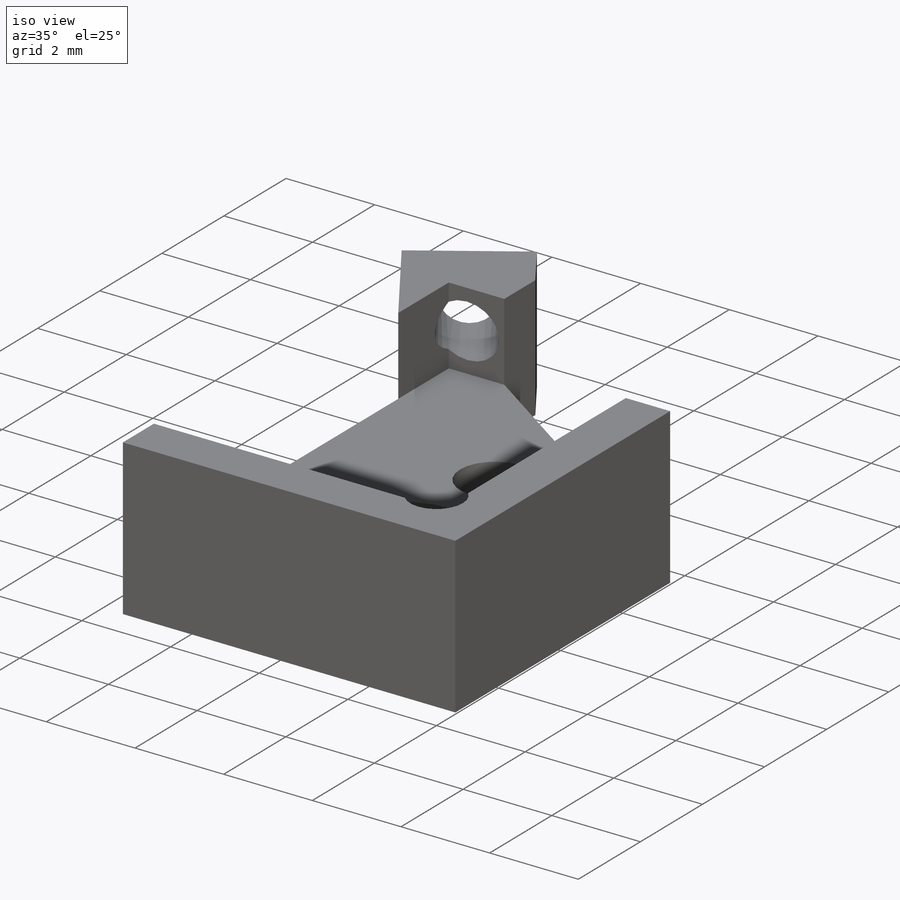
[diagram: iso view]
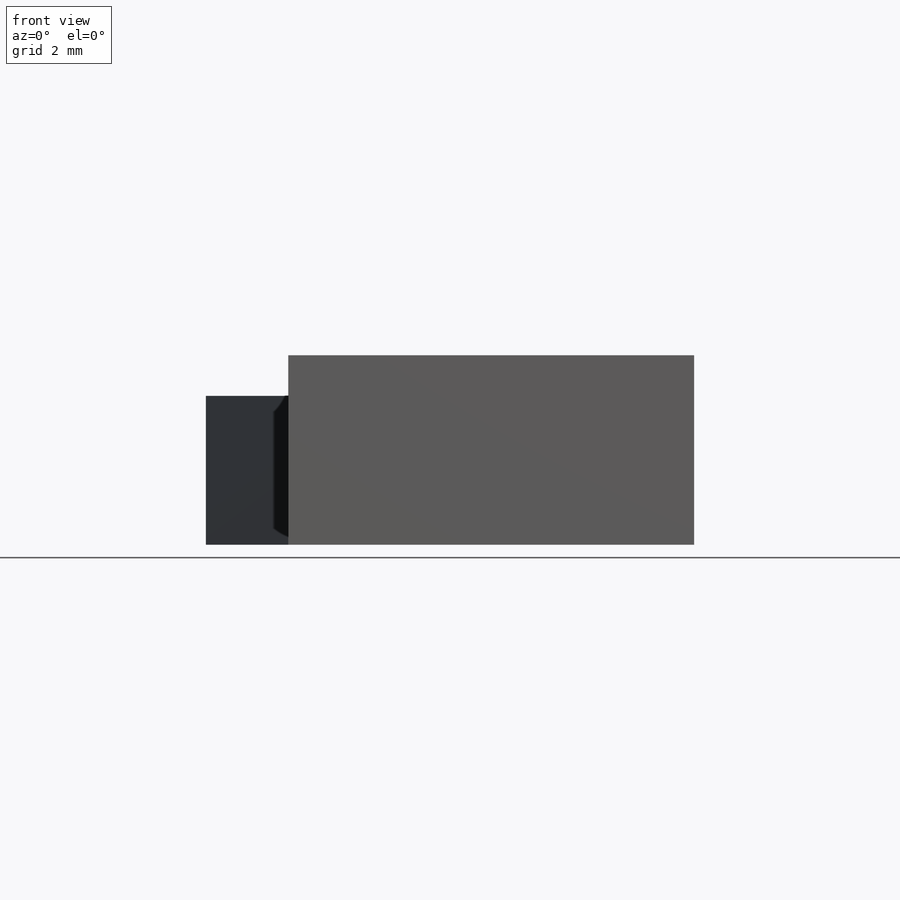
[diagram: front view]
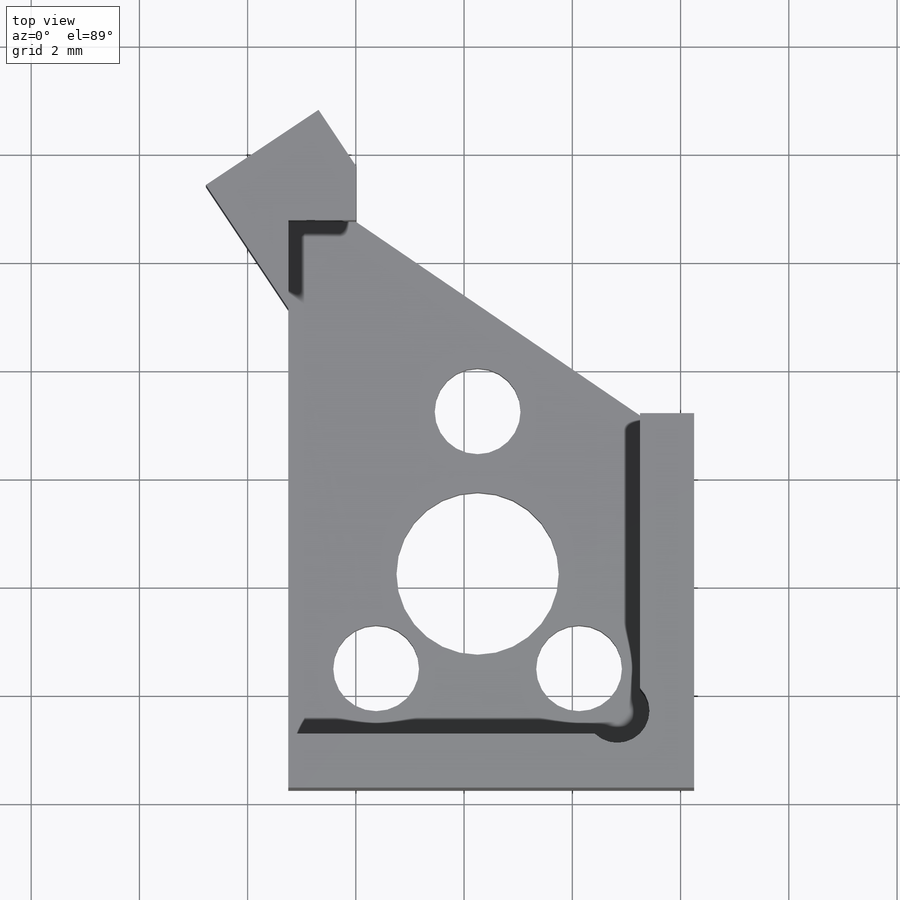
[diagram: top view]
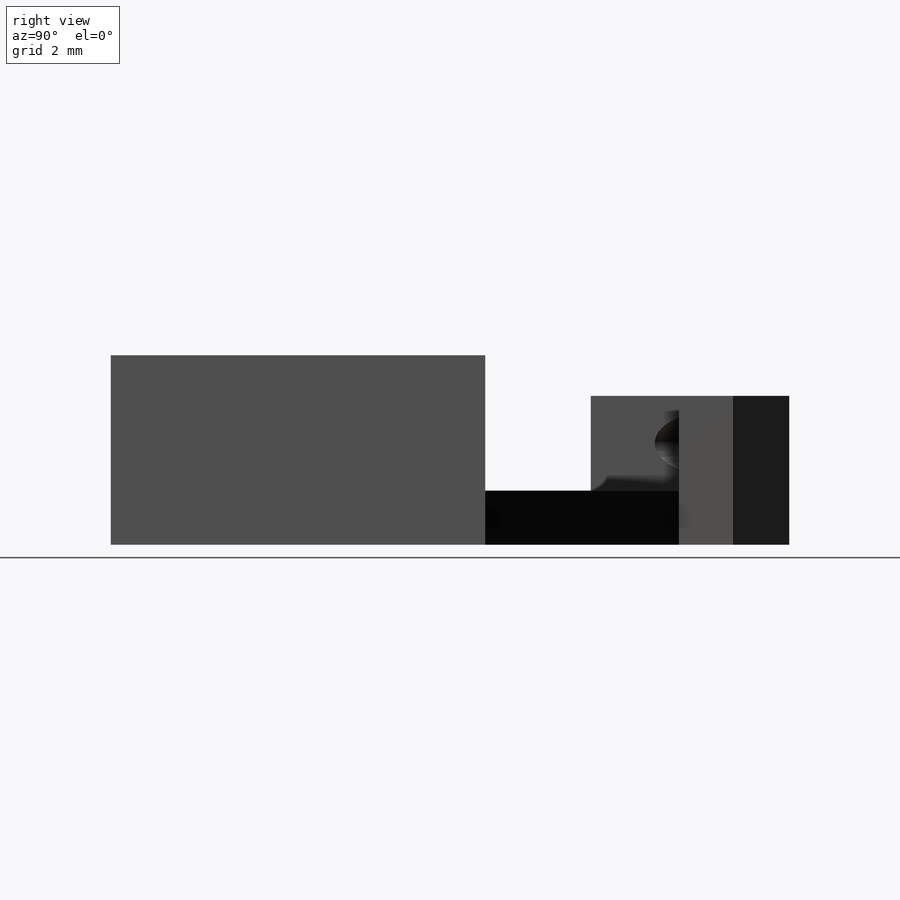
[diagram: right view]
SOLIDWORKS PART (.sldprt)
format: sldprt  version: not decoded by parser v0  size: 624,128 bytes
history: native  units: mm
features: sketch x11, cut_extrude x6, extrude x2, material x1, hole x1 (+11 scaffold rows collapsed)
feature tree (32):
  scaffold x11  (default folders/planes/origin — collapsed)
  material  "Material <not specified>"
  sketch  "Sketch1"  dims[c1.D1=7.5mm c1.D2=7.5mm c1.D3=1.0mm c1.D4=1.0mm c1.D5=7.5mm c2.D1=8.5mm c2.D2=11.5mm]
  extrude  "Boss-Extrude1"  Depth=3.5mm
  sketch  "Sketch2"  dims[D1=1.0mm D2=1.0mm]
  cut_extrude  "Cut-Extrude1"  Depth=1mm
  sketch  "Sketch3"  dims[c1.D1=3.0mm c1.D2=3.0mm c1.D3=3.0mm c2.D2=3.0mm c2.D3=3.0mm]
  cut_extrude  "Cut-Extrude2"  [1 undecoded]
  sketch  "Sketch6"  dims[D1=~1.190625mm]
  cut_extrude  "Cut-Extrude5"  [1 undecoded]
  sketch  "Sketch7"  dims[D1=1.5875mm D2=3.75mm D3=3.0mm D4=1.75mm]
  cut_extrude  "Cut-Extrude6"  [1 undecoded]
  sketch  "Sketch9"  dims[c1.D1=~1.436912mm c2.D1=45.0deg c2.D2=1.75mm c2.D3=1.0mm c3.D1=0.25mm c3.D2=1.75mm c3.D3=~2.196855mm c4.D3=45.0deg c5.D3=~2.474874mm c6.D3=~79.045937deg c7.D3=1.75mm c7.D1=6.0mm c7.D2=9.0mm c8.D3=~1.08204mm c8.D4=2.5mm]
  extrude  "Boss-Extrude2"  [1 undecoded]
  sketch  "Sketch14"
  cut_extrude  "Cut-Extrude8"  Depth=0.75mm
  sketch  "Sketch10"  dims[D1=1.0mm]
  hole  "Tap Drill for #0-80 Tap1"  Diameter=1.19126mm Depth=7.11mm
  sketch  "Sketch12"
  sketch  "Sketch11"  dims[hole-wizard template sketch: 46 standard entries collapsed; hole parameters kept: c15.Hole Dia.=~1.19126mm c15.Hole Depth=7.11mm c15.D3=~14.816244mm c15.Drill Angle=118.0deg]
  sketch  "Sketch13"  dims[D1=5.0mm]
  cut_extrude  "Cut-Extrude7"  [1 undecoded]
decode coverage: 13 of 20 modeling features carry decoded parameters
note: ~ marks probable driven/reference dimensions
note: 5 parameter values undecoded
summary: no parameter record found for 5 features
note: suppression state not decoded; provenance and decode notes live in map.json
